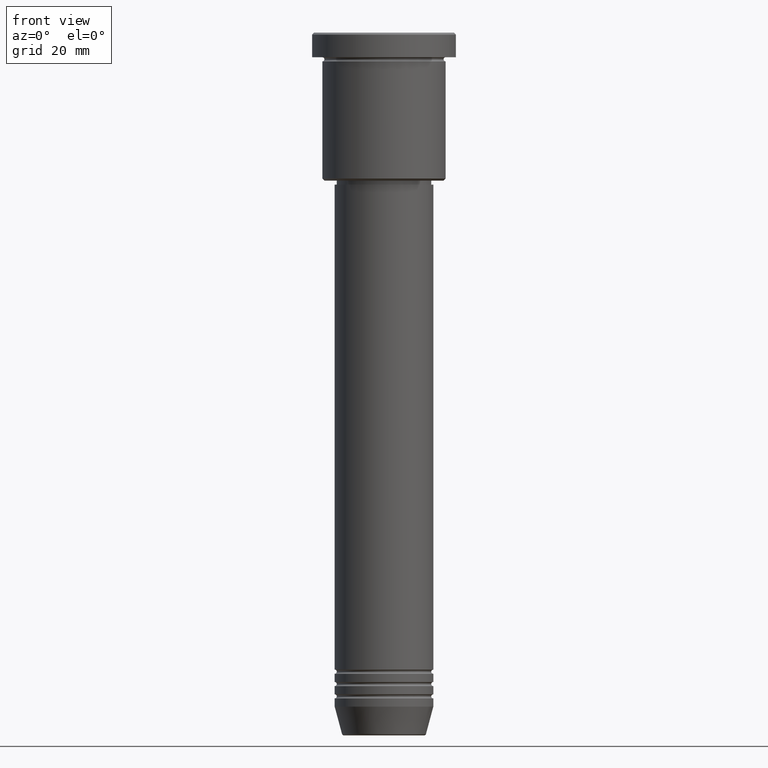
[diagram: clean part render]
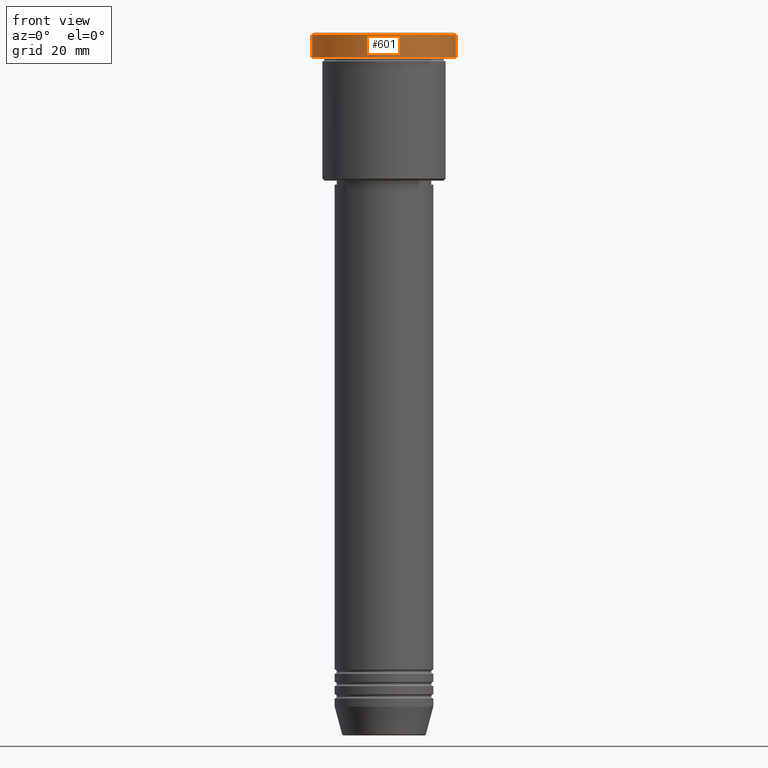
[diagram: same view with one face highlighted and labeled with its STEP entity id]
A machine part, front view. The second image highlights one B-rep face of the part: STEP entity #601.
In plain terms, the highlighted cylindrical surface (partial cylindrical patch) has radius 17.5 mm, axis along (-0, -0, 1).
Its self-contained STEP definition (entity closure, byte-faithful):
#3 = AXIS2_PLACEMENT_3D ( 'NONE', #582, #946, #122 ) ;
#10 = EDGE_CURVE ( 'NONE', #890, #278, #1168, .T. ) ;
#90 = EDGE_CURVE ( 'NONE', #930, #278, #459, .T. ) ;
#101 = EDGE_CURVE ( 'NONE', #1146, #890, #929, .T. ) ;
#122 = DIRECTION ( 'NONE',  ( 1.000000000000000000, 0.000000000000000000, 0.000000000000000000 ) ) ;
#127 = CARTESIAN_POINT ( 'NONE',  ( 0.000000000000000000, 0.000000000000000000, 0.000000000000000000 ) ) ;
#145 = CARTESIAN_POINT ( 'NONE',  ( -17.50000000000000000, 2.143131898507868248E-15, -0.4999999999999727995 ) ) ;
#163 = ORIENTED_EDGE ( 'NONE', *, *, #101, .T. ) ;
#170 = CARTESIAN_POINT ( 'NONE',  ( -17.50000000000000000, 2.143131898507868248E-15, -5.999999999999995559 ) ) ;
#184 = CARTESIAN_POINT ( 'NONE',  ( 0.000000000000000000, 0.000000000000000000, -0.4999999999999727995 ) ) ;
#212 = CARTESIAN_POINT ( 'NONE',  ( 17.50000000000000000, 0.000000000000000000, -5.999999999999995559 ) ) ;
#278 = VERTEX_POINT ( 'NONE', #145 ) ;
#321 = CIRCLE ( 'NONE', #3, 17.50000000000000000 ) ;
#459 = LINE ( 'NONE', #657, #936 ) ;
#480 = CARTESIAN_POINT ( 'NONE',  ( 17.50000000000000000, 0.000000000000000000, 0.000000000000000000 ) ) ;
#571 = ORIENTED_EDGE ( 'NONE', *, *, #1159, .T. ) ;
#582 = CARTESIAN_POINT ( 'NONE',  ( 0.000000000000000000, 0.000000000000000000, -5.999999999999995559 ) ) ;
#587 = AXIS2_PLACEMENT_3D ( 'NONE', #184, #937, #724 ) ;
#592 = FACE_OUTER_BOUND ( 'NONE', #672, .T. ) ;
#601 = ADVANCED_FACE ( 'NONE', ( #592 ), #851, .T. ) ;
#657 = CARTESIAN_POINT ( 'NONE',  ( -17.50000000000000000, 2.143131898507868248E-15, 0.000000000000000000 ) ) ;
#672 = EDGE_LOOP ( 'NONE', ( #682, #571, #163, #755 ) ) ;
#682 = ORIENTED_EDGE ( 'NONE', *, *, #90, .F. ) ;
#724 = DIRECTION ( 'NONE',  ( 1.000000000000000000, 0.000000000000000000, 0.000000000000000000 ) ) ;
#755 = ORIENTED_EDGE ( 'NONE', *, *, #10, .T. ) ;
#807 = CARTESIAN_POINT ( 'NONE',  ( 17.50000000000000000, 0.000000000000000000, -0.4999999999999727995 ) ) ;
#818 = AXIS2_PLACEMENT_3D ( 'NONE', #127, #963, #868 ) ;
#825 = DIRECTION ( 'NONE',  ( -0.000000000000000000, -0.000000000000000000, 1.000000000000000000 ) ) ;
#851 = CYLINDRICAL_SURFACE ( 'NONE', #818, 17.50000000000000000 ) ;
#868 = DIRECTION ( 'NONE',  ( 1.000000000000000000, 0.000000000000000000, 0.000000000000000000 ) ) ;
#890 = VERTEX_POINT ( 'NONE', #807 ) ;
#917 = VECTOR ( 'NONE', #825, 1000.000000000000000 ) ;
#929 = LINE ( 'NONE', #480, #917 ) ;
#930 = VERTEX_POINT ( 'NONE', #170 ) ;
#936 = VECTOR ( 'NONE', #1025, 1000.000000000000000 ) ;
#937 = DIRECTION ( 'NONE',  ( 0.000000000000000000, 0.000000000000000000, -1.000000000000000000 ) ) ;
#946 = DIRECTION ( 'NONE',  ( -0.000000000000000000, -0.000000000000000000, 1.000000000000000000 ) ) ;
#963 = DIRECTION ( 'NONE',  ( -0.000000000000000000, -0.000000000000000000, 1.000000000000000000 ) ) ;
#1025 = DIRECTION ( 'NONE',  ( -0.000000000000000000, -0.000000000000000000, 1.000000000000000000 ) ) ;
#1146 = VERTEX_POINT ( 'NONE', #212 ) ;
#1159 = EDGE_CURVE ( 'NONE', #930, #1146, #321, .T. ) ;
#1168 = CIRCLE ( 'NONE', #587, 17.50000000000000000 ) ;